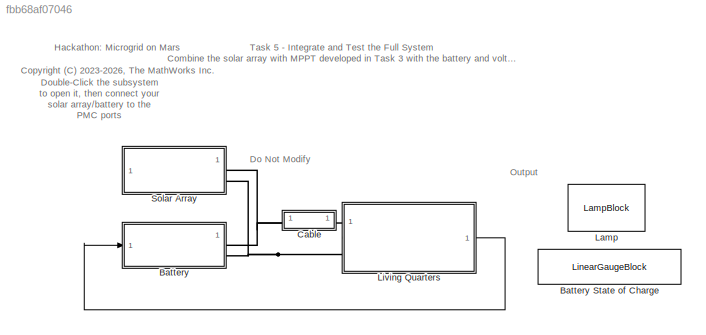
MODEL slx_fbb68af07046
KIND model
CONFIG SolverName = VariableStepAuto
CONFIG StopTime = (3600+37*60/24)*24*7
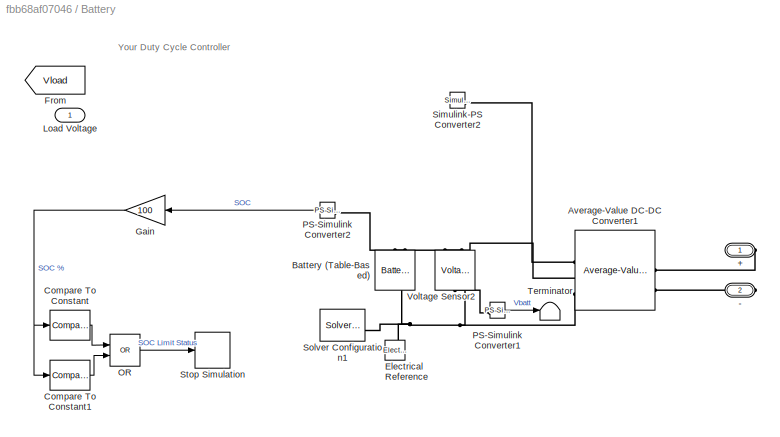
BLOCK [SubSystem] Battery
BLOCK [LinearGaugeBlock] Battery State of Charge
  LabelPosition = Hide
  NameLocation = top
BLOCK [PMIOPort] Battery/+
  Side = Right
BLOCK [PMIOPort] Battery/-
  Port = 2
  Side = Right
BLOCK [Reference] Battery/Average-Value DC-DC Converter1  REF=ee_lib/Semiconductors &
Converters/Converters/Average-Value DC-DC
Converter
  SourceBlock = ee_lib/Semiconductors &\nConverters/Converters/Average-Value DC-DC\nConverter
  SourceType = Average-Value DC-DC\nConverter
BLOCK [Reference] Battery/Battery (Table-Based)  REF=batteryecm_lib/Battery
(Table-Based)
  LibrarySourceBlock = ee_lib/Sources/Battery\n(Table-Based)
  NameLocation = right
  SourceBlock = batteryecm_lib/Battery\n(Table-Based)
  SourceType = Battery\n(Table-Based)
BLOCK [Reference] Battery/Compare To Constant  REF=simulink/Logic and Bit
Operations/Compare
To Constant
  SourceBlock = simulink/Logic and Bit\nOperations/Compare\nTo Constant
  SourceType = Compare To Constant
BLOCK [Reference] Battery/Compare To Constant1  REF=simulink/Logic and Bit
Operations/Compare
To Constant
  SourceBlock = simulink/Logic and Bit\nOperations/Compare\nTo Constant
  SourceType = Compare To Constant
BLOCK [Reference] Battery/Electrical Reference  REF=fl_lib/Electrical/Electrical Elements/Electrical Reference
  NameLocation = right
  SourceBlock = fl_lib/Electrical/Electrical Elements/Electrical Reference
  SourceType = Electrical Reference
BLOCK [From] Battery/From
  GotoTag = Vload
  TagVisibility = global
BLOCK [Gain] Battery/Gain
  Gain = 100
  NameLocation = top
BLOCK [Inport] Battery/Load Voltage
BLOCK [Logic] Battery/OR
  AllPortsSameDT = off
  IconShape = distinctive
  Operator = OR
  OutDataTypeStr = boolean
BLOCK [Reference] Battery/PS-Simulink Converter1  REF=nesl_utility/PS-Simulink
Converter
  SourceBlock = nesl_utility/PS-Simulink\nConverter
  SourceType = PS-Simulink\nConverter
BLOCK [Reference] Battery/PS-Simulink Converter2  REF=nesl_utility/PS-Simulink
Converter
  NameLocation = top
  SourceBlock = nesl_utility/PS-Simulink\nConverter
  SourceType = PS-Simulink\nConverter
BLOCK [Reference] Battery/Simulink-PS Converter2  REF=nesl_utility/Simulink-PS
Converter
  SourceBlock = nesl_utility/Simulink-PS\nConverter
  SourceType = Simulink-PS\nConverter
BLOCK [Reference] Battery/Solver Configuration1  REF=nesl_utility/Solver
Configuration
  SourceBlock = nesl_utility/Solver\nConfiguration
  SourceType = Solver\nConfiguration
BLOCK [Stop] Battery/Stop Simulation
BLOCK [Terminator] Battery/Terminator
BLOCK [Reference] Battery/Voltage Sensor2  REF=fl_lib/Electrical/Electrical Sensors/Voltage Sensor
  NameLocation = right
  SourceBlock = fl_lib/Electrical/Electrical Sensors/Voltage Sensor
  SourceType = Voltage Sensor
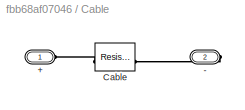
BLOCK [SubSystem] Cable
BLOCK [PMIOPort] Cable/+
  Side = Left
BLOCK [PMIOPort] Cable/-
  Port = 2
  Side = Right
BLOCK [Reference] Cable/Cable  REF=fl_lib/Electrical/Electrical Elements/Resistor
  NameLocation = top
  SourceBlock = fl_lib/Electrical/Electrical Elements/Resistor
  SourceType = Resistor
BLOCK [LampBlock] Lamp
  DefaultColor = [255.0, 0.0, 0.0]
  NameLocation = top
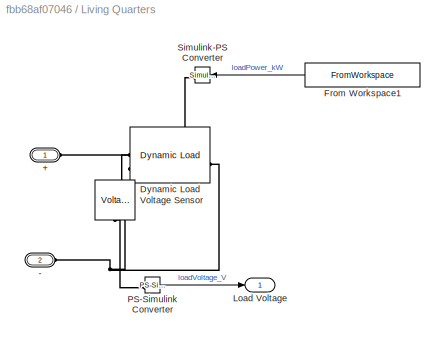
BLOCK [SubSystem] Living Quarters
BLOCK [PMIOPort] Living Quarters/+
  Side = Left
BLOCK [PMIOPort] Living Quarters/-
  Port = 2
  Side = Left
BLOCK [Reference] Living Quarters/Dynamic Load  REF=ee_lib/Passive/Dynamic Load
  SourceBlock = ee_lib/Passive/Dynamic Load
  SourceType = Dynamic Load
BLOCK [FromWorkspace] Living Quarters/From Workspace1
  NameLocation = top
  VariableName = [t loadPower]
BLOCK [Outport] Living Quarters/Load Voltage
BLOCK [Reference] Living Quarters/PS-Simulink Converter  REF=nesl_utility/PS-Simulink
Converter
  SourceBlock = nesl_utility/PS-Simulink\nConverter
  SourceType = PS-Simulink\nConverter
BLOCK [Reference] Living Quarters/Simulink-PS Converter  REF=nesl_utility/Simulink-PS
Converter
  NameLocation = top
  SourceBlock = nesl_utility/Simulink-PS\nConverter
  SourceType = Simulink-PS\nConverter
BLOCK [Reference] Living Quarters/Voltage Sensor  REF=fl_lib/Electrical/Electrical Sensors/Voltage Sensor
  NameLocation = right
  SourceBlock = fl_lib/Electrical/Electrical Sensors/Voltage Sensor
  SourceType = Voltage Sensor
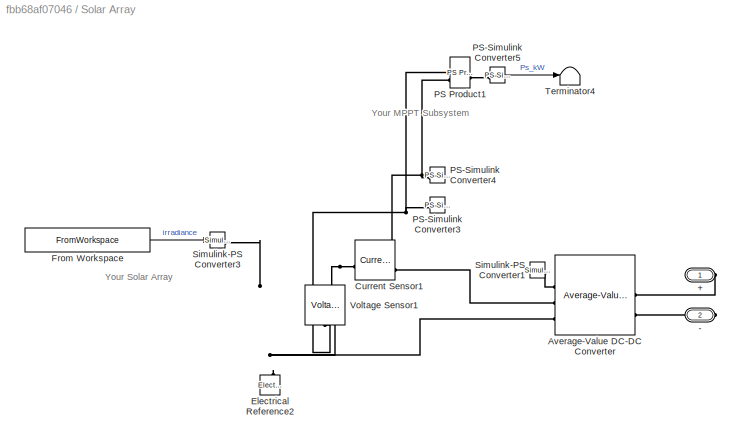
BLOCK [SubSystem] Solar Array
BLOCK [PMIOPort] Solar Array/+
  Side = Right
BLOCK [PMIOPort] Solar Array/-
  Port = 2
  Side = Right
BLOCK [Reference] Solar Array/Average-Value DC-DC Converter  REF=ee_lib/Semiconductors &
Converters/Converters/Average-Value DC-DC
Converter
  SourceBlock = ee_lib/Semiconductors &\nConverters/Converters/Average-Value DC-DC\nConverter
  SourceType = Average-Value DC-DC\nConverter
BLOCK [Reference] Solar Array/Current Sensor1  REF=fl_lib/Electrical/Electrical Sensors/Current Sensor
  SourceBlock = fl_lib/Electrical/Electrical Sensors/Current Sensor
  SourceType = Current Sensor
BLOCK [Reference] Solar Array/Electrical Reference2  REF=fl_lib/Electrical/Electrical Elements/Electrical Reference
  NameLocation = right
  SourceBlock = fl_lib/Electrical/Electrical Elements/Electrical Reference
  SourceType = Electrical Reference
BLOCK [FromWorkspace] Solar Array/From Workspace
  VariableName = [t irradiance]
BLOCK [Reference] Solar Array/PS Product1  REF=fl_lib/Physical Signals/Functions/PS Product
  SourceBlock = fl_lib/Physical Signals/Functions/PS Product
  SourceType = PS Product
BLOCK [Reference] Solar Array/PS-Simulink Converter3  REF=nesl_utility/PS-Simulink
Converter
  SourceBlock = nesl_utility/PS-Simulink\nConverter
  SourceType = PS-Simulink\nConverter
BLOCK [Reference] Solar Array/PS-Simulink Converter4  REF=nesl_utility/PS-Simulink
Converter
  SourceBlock = nesl_utility/PS-Simulink\nConverter
  SourceType = PS-Simulink\nConverter
BLOCK [Reference] Solar Array/PS-Simulink Converter5  REF=nesl_utility/PS-Simulink
Converter
  SourceBlock = nesl_utility/PS-Simulink\nConverter
  SourceType = PS-Simulink\nConverter
BLOCK [Reference] Solar Array/Simulink-PS Converter1  REF=nesl_utility/Simulink-PS
Converter
  SourceBlock = nesl_utility/Simulink-PS\nConverter
  SourceType = Simulink-PS\nConverter
BLOCK [Reference] Solar Array/Simulink-PS Converter3  REF=nesl_utility/Simulink-PS
Converter
  SourceBlock = nesl_utility/Simulink-PS\nConverter
  SourceType = Simulink-PS\nConverter
BLOCK [Terminator] Solar Array/Terminator4
BLOCK [Reference] Solar Array/Voltage Sensor1  REF=fl_lib/Electrical/Electrical Sensors/Voltage Sensor
  NameLocation = right
  SourceBlock = fl_lib/Electrical/Electrical Sensors/Voltage Sensor
  SourceType = Voltage Sensor
ANNOTATION (root): Hackathon: Microgrid on Mars <copyright redacted>
ANNOTATION (root): Task 5 - Integrate and Test the Full System Combine the solar array with MPPT developed in Task 3 with the battery and voltage control developed in Task 4 and connect to the living quarters. If your design is able to provide uninterrupted supply to the living quarters for 7 sols and keep voltage between 500V and 520V then you have completed the hackathon!
ANNOTATION (root): Do Not Modify
ANNOTATION (root): Double-Click the subsystem to open it, then connect your solar array/battery to the PMC ports
ANNOTATION (root): Output
ANNOTATION Battery: Your Duty Cycle Controller
ANNOTATION Solar Array: Your MPPT Subsystem
ANNOTATION Solar Array: Your Solar Array
LINE Battery/Compare To Constant1:1 -> Battery/OR:2
LINE Battery/Compare To Constant:1 -> Battery/OR:1
NET Battery/Gain:1 -> Battery/Compare To Constant1:1, Battery/Compare To Constant:1
LINE Battery/OR:1 -> Battery/Stop Simulation:1
LINE Battery/PS-Simulink Converter1:1 -> Battery/Terminator:1
LINE Battery/PS-Simulink Converter2:1 -> Battery/Gain:1
LINE Living Quarters/From Workspace1:1 -> Living Quarters/Simulink-PS Converter:1
LINE Living Quarters/PS-Simulink Converter:1 -> Living Quarters/Load Voltage:1
LINE Living Quarters:1 -> Battery:1
LINE Solar Array/From Workspace:1 -> Solar Array/Simulink-PS Converter3:1
LINE Solar Array/PS-Simulink Converter5:1 -> Solar Array/Terminator4:1
PLINE Battery/+:RConn1 -- Battery/Average-Value DC-DC Converter1:RConn1
PLINE Battery/-:RConn1 -- Battery/Average-Value DC-DC Converter1:RConn2
PLINE Battery/Average-Value DC-DC Converter1:LConn1 -- Battery/Simulink-PS Converter2:RConn1
PNET net1: Battery/Average-Value DC-DC Converter1:LConn2 -- Battery/Battery (Table-Based):LConn1 -- Battery/Voltage Sensor2:LConn1
PNET net2: Battery/Average-Value DC-DC Converter1:LConn3 -- Battery/Battery (Table-Based):RConn1 -- Battery/Electrical Reference:LConn1 -- Battery/Solver Configuration1:RConn1 -- Battery/Voltage Sensor2:RConn2
PLINE Battery/Battery (Table-Based):LConn2 -- Battery/PS-Simulink Converter2:LConn1
PLINE Battery/PS-Simulink Converter1:LConn1 -- Battery/Voltage Sensor2:RConn1
PNET net3: Battery:RConn1 -- Cable:LConn1 -- Solar Array:RConn1
PNET net4: Battery:RConn2 -- Living Quarters:LConn2 -- Solar Array:RConn2
PLINE Cable/+:RConn1 -- Cable/Cable:LConn1
PLINE Cable/-:RConn1 -- Cable/Cable:RConn1
PLINE Cable:RConn1 -- Living Quarters:LConn1
PNET net5: Living Quarters/+:RConn1 -- Living Quarters/Dynamic Load:LConn1 -- Living Quarters/Voltage Sensor:LConn1
PNET net6: Living Quarters/-:RConn1 -- Living Quarters/Dynamic Load:RConn1 -- Living Quarters/Voltage Sensor:RConn2
PLINE Living Quarters/Dynamic Load:LConn2 -- Living Quarters/Simulink-PS Converter:RConn1
PLINE Living Quarters/PS-Simulink Converter:LConn1 -- Living Quarters/Voltage Sensor:RConn1
PLINE Solar Array/+:RConn1 -- Solar Array/Average-Value DC-DC Converter:RConn1
PLINE Solar Array/-:RConn1 -- Solar Array/Average-Value DC-DC Converter:RConn2
PLINE Solar Array/Average-Value DC-DC Converter:LConn1 -- Solar Array/Simulink-PS Converter1:RConn1
PLINE Solar Array/Average-Value DC-DC Converter:LConn2 -- Solar Array/Current Sensor1:RConn2
PNET net7: Solar Array/Average-Value DC-DC Converter:LConn3 -- Solar Array/Electrical Reference2:LConn1 -- Solar Array/Voltage Sensor1:RConn2
PLINE Solar Array/Current Sensor1:LConn1 -- Solar Array/Voltage Sensor1:LConn1
PNET net8: Solar Array/Current Sensor1:RConn1 -- Solar Array/PS Product1:LConn2 -- Solar Array/PS-Simulink Converter4:LConn1
PNET net9: Solar Array/PS Product1:LConn1 -- Solar Array/PS-Simulink Converter3:LConn1 -- Solar Array/Voltage Sensor1:RConn1
PLINE Solar Array/PS Product1:RConn1 -- Solar Array/PS-Simulink Converter5:LConn1
note: NET lines group one-source signal fan-out (src -> all destinations, sorted); 1:1 wires keep LINE; PNET lines group multi-terminal physical nets as a canonical sorted terminal list (undirected conserving connections); 2-terminal nets keep the pairwise PLINE form
